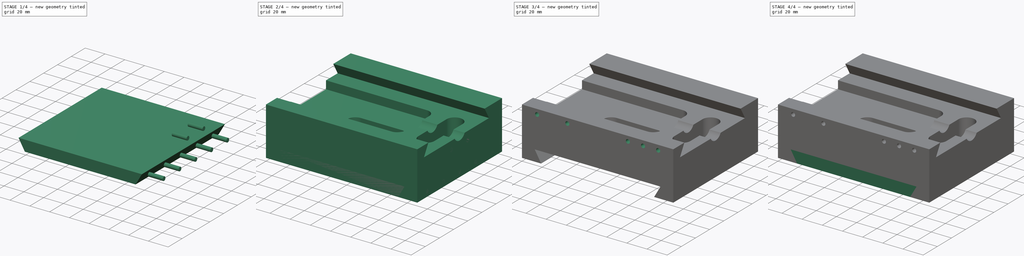
[diagram: build sequence overview — one tinted view per stage of 4, left to right]
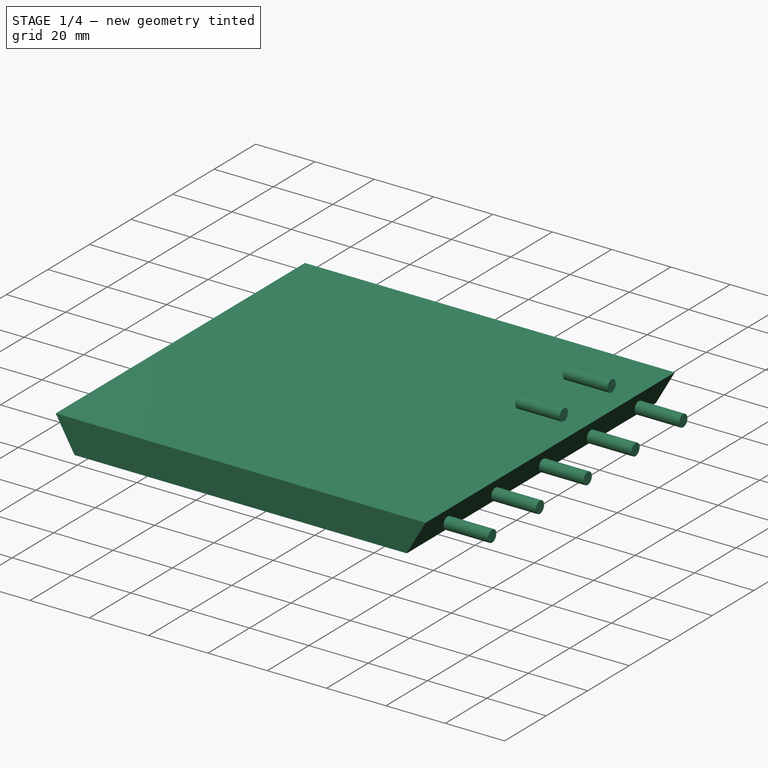
[diagram: stage 1 of 4 — iso view after this stage's code; geometry added in this stage tinted green]
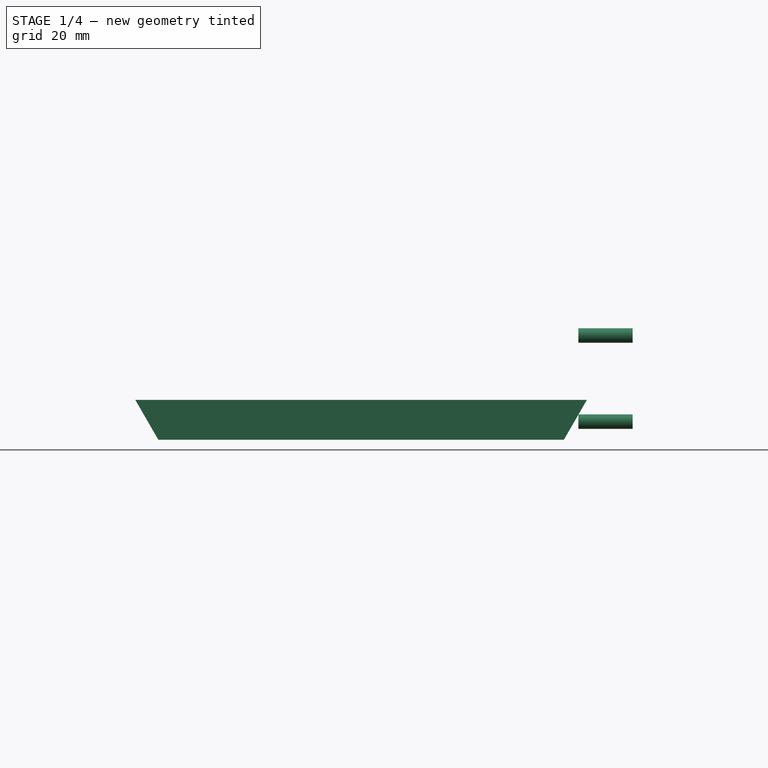
[diagram: stage 1 of 4 — front view after this stage's code; geometry added in this stage tinted green]
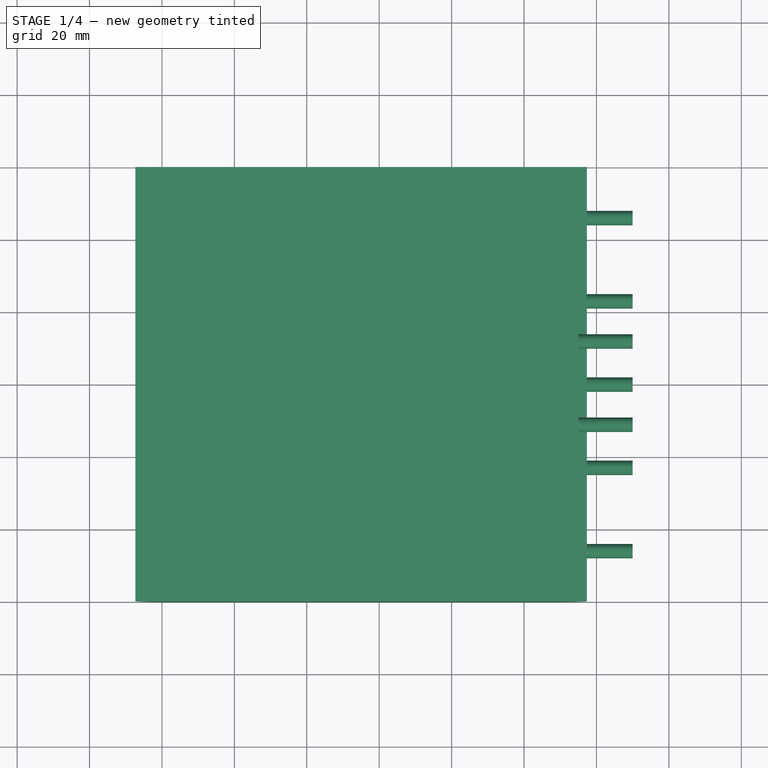
[diagram: stage 1 of 4 — top view after this stage's code; geometry added in this stage tinted green]
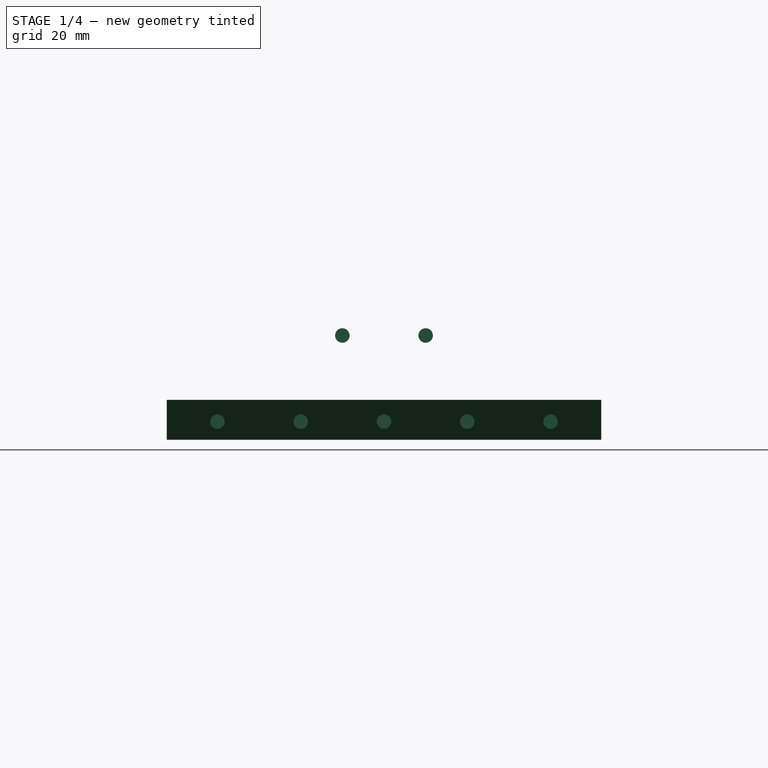
[diagram: stage 1 of 4 — right view after this stage's code; geometry added in this stage tinted green]
FCSTD DOCUMENT  (FreeCAD 0.16R5470 (Git))
Label: Saddle-149
License: CreativeCommons Attribution-ShareAlike
LicenseURL: http://creativecommons.org/licenses/by-sa/4.0/
objects: Sketcher::SketchObject×7, PartDesign::Pocket×4, Part::Extrusion×4, Part::Cut×2, PartDesign::Pad×1
note: 23 computed .brp shape members not serialized (recipe doc carries the construction recipe); baked Part::Feature solids carry a one-line shape summary decoded from their .brp

FEATURE [Sketcher::SketchObject] Sketch  label="Sketch-001"
  Placement = pos=(0,0,0) rot=(0.57735,0.57735,0.57735;2.0944rad)
  sketch-geometry (10):
    g0: LineSegment StartX=-60 StartY=0 StartZ=0 EndX=-60 EndY=47.8 EndZ=0
    g1: LineSegment StartX=-60 StartY=47.8 StartZ=0 EndX=-44.3 EndY=47.8 EndZ=0
    g2: LineSegment StartX=-44.3 StartY=47.8 StartZ=0 EndX=-50.5354 EndY=37 EndZ=0
    g3: LineSegment StartX=-50.5354 StartY=37 StartZ=0 EndX=-7.03989 EndY=37 EndZ=0
    g4: LineSegment StartX=7.03989 StartY=37 StartZ=0 EndX=41.5354 EndY=37 EndZ=0
    g5: LineSegment StartX=41.5354 StartY=37 StartZ=0 EndX=35.3 EndY=47.8 EndZ=0
    g6: LineSegment StartX=35.3 StartY=47.8 StartZ=0 EndX=60 EndY=47.8 EndZ=0
    g7: LineSegment StartX=60 StartY=47.8 StartZ=0 EndX=60 EndY=0 EndZ=0
    g8: LineSegment StartX=60 StartY=0 StartZ=0 EndX=-60 EndY=0 EndZ=0
    g9: ArcOfCircle CenterX=0 CenterY=40.8 CenterZ=0 NormalX=0 NormalY=0 NormalZ=1 Radius=8 StartAngle=3.63656 EndAngle=5.78822
  constraints (31):
    c: Coincident(g0,g1)
    c: Coincident(g1,g2)
    c: Coincident(g2,g3)
    c: Coincident(g4,g5)
    c: Coincident(g5,g6)
    c: Coincident(g6,g7)
    c: Coincident(g7,g8)
    c: Coincident(g9,g4)
    c: Coincident(g9,g3)
    c: Horizontal(g4)
    c: Horizontal(g3)
    c: Vertical(g0)
    c: Equal(g7,g0)
    c: Vertical(g7)
    c: Coincident(g0,g8)
    c: Angle(g3,g2) = 1.0472
    c: Angle(g5,g4) = 1.0472
    c: DistanceX(g0,g7) = 120
    c: Horizontal(g8)
    c: Symmetric(g0,g7,g-2)
    c: DistanceY(g-1,g7) = 0
    c: Horizontal(g1)
    c: Horizontal(g6)
    c: DistanceY(g0,g0) = -47.8
    c: DistanceY(g2,g0) = 10.8
    c: DistanceY(g6,g4) = -10.8
    c: DistanceX(g-1,g9) = 0
    c: Radius(g9) = 8
    c: DistanceY(g9,g1) = 7
    c: DistanceX(g1,g5) = 79.6
    c: DistanceX(g1,g0) = -15.7
FEATURE [PartDesign::Pad] Pad  label="Y-Z Profile"
  Length = 150
  Length2 = 100
  Placement = pos=(0,0,0) rot=(0.57735,0.57735,0.57735;2.0944rad)
  Sketch = -> Sketch
  Type = 0
FEATURE [Part::Extrusion] Extrude_Sketch002  label="Sketch-006_Extrude"
  Base = -> Sketch002
  Dir = (0,120,0)
  Solid = true
FEATURE [Part::Extrusion] Extrude_Sketch001  label="Sketch-005_Extrude"
  Base = -> Sketch001
  Dir = (-15,0,0)
  Solid = true
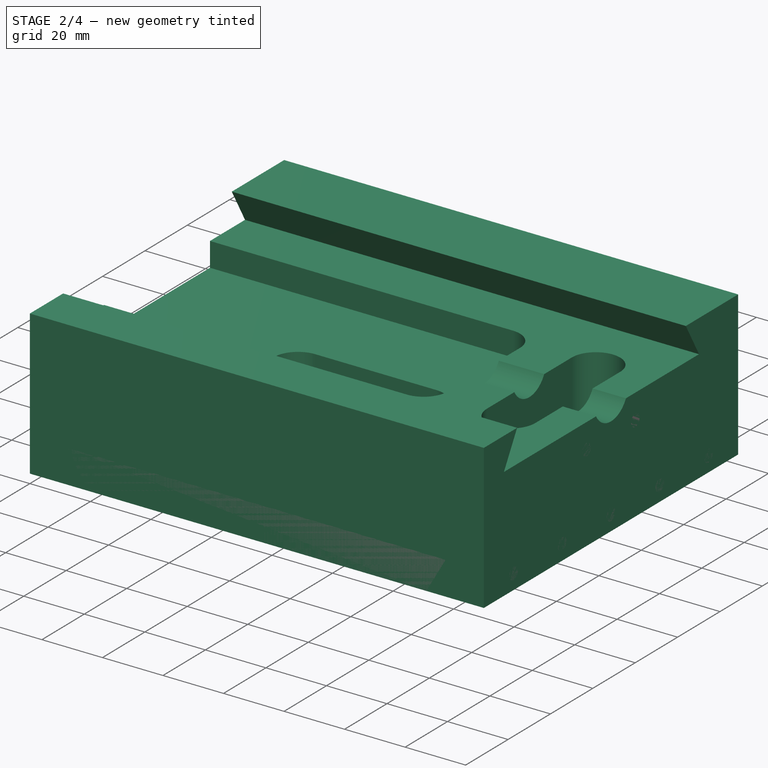
[diagram: stage 2 of 4 — iso view after this stage's code; geometry added in this stage tinted green]
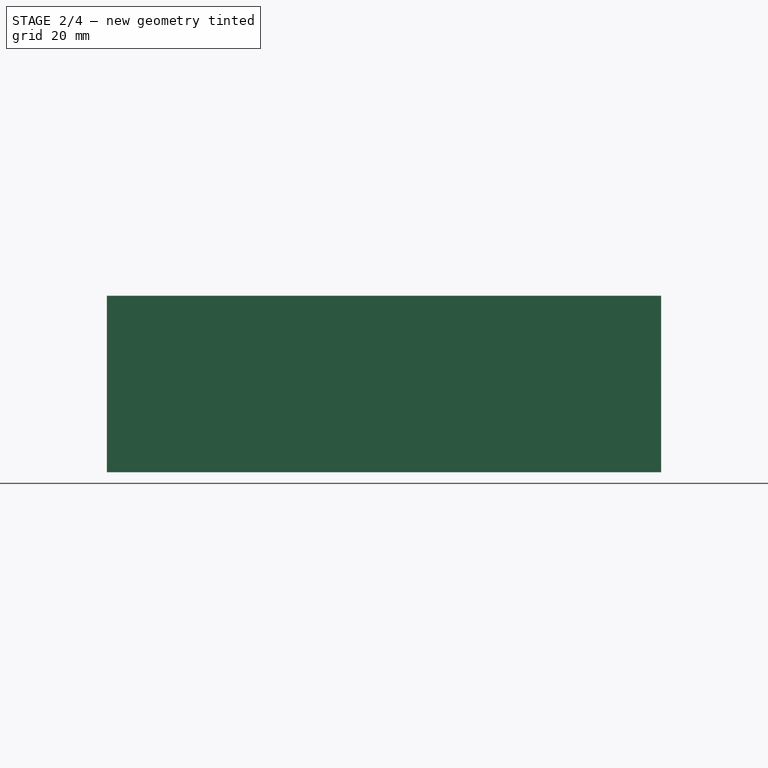
[diagram: stage 2 of 4 — front view after this stage's code; geometry added in this stage tinted green]
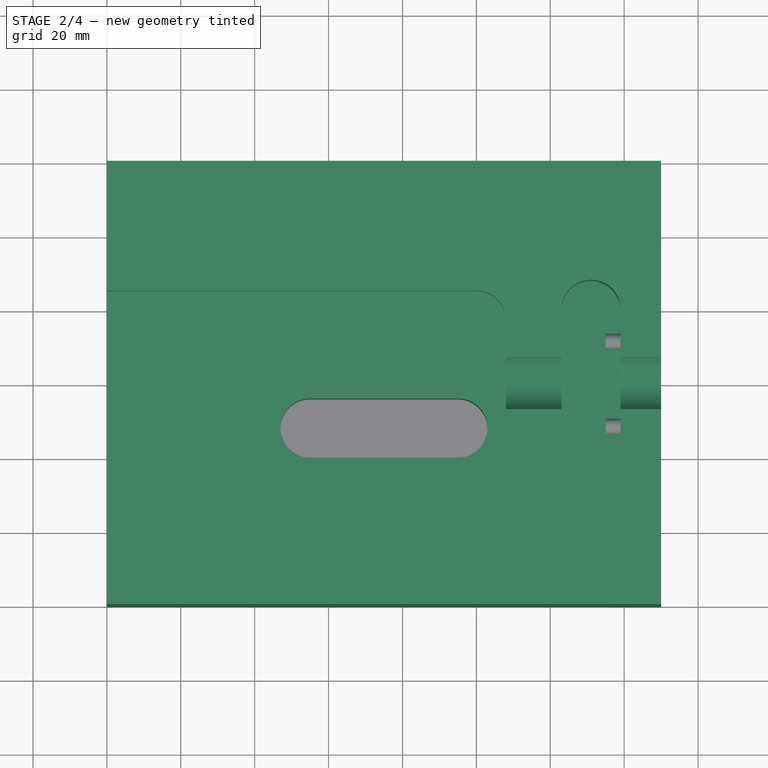
[diagram: stage 2 of 4 — top view after this stage's code; geometry added in this stage tinted green]
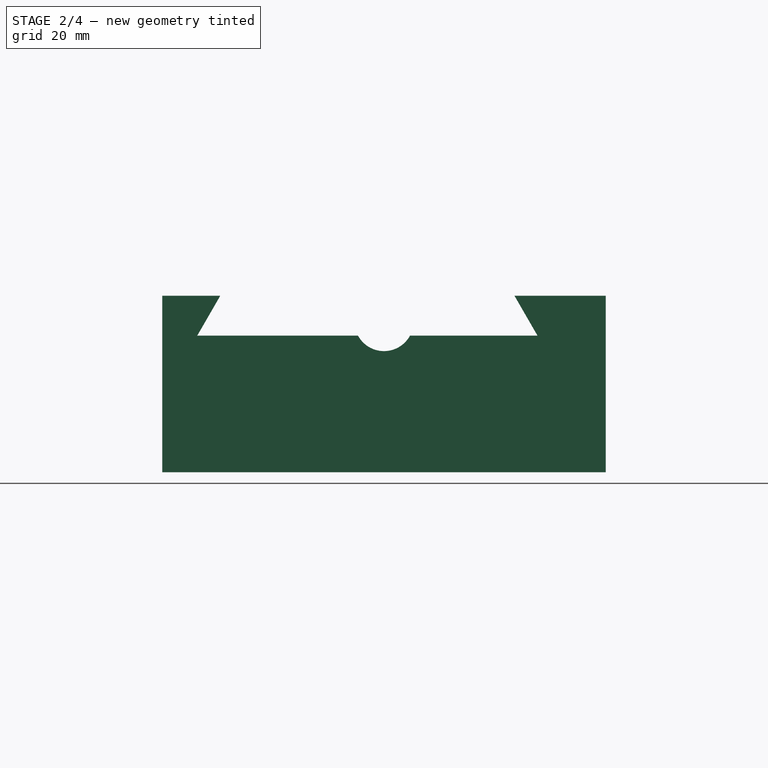
[diagram: stage 2 of 4 — right view after this stage's code; geometry added in this stage tinted green]
FEATURE [Sketcher::SketchObject] Sketch001  label="Sketch-005"
  Placement = pos=(150,0,0) rot=(0.57735,0.57735,0.57735;2.0944rad)
  Support = -> Pad [Face12]
  sketch-geometry (7):
    g0: Circle CenterX=0 CenterY=5 CenterZ=0 NormalX=0 NormalY=0 NormalZ=1 Radius=2
    g1: Circle CenterX=23 CenterY=5 CenterZ=0 NormalX=0 NormalY=0 NormalZ=1 Radius=2
    g2: Circle CenterX=46 CenterY=5 CenterZ=0 NormalX=0 NormalY=0 NormalZ=1 Radius=2
    g3: Circle CenterX=-23 CenterY=5 CenterZ=0 NormalX=0 NormalY=0 NormalZ=1 Radius=2
    g4: Circle CenterX=-46 CenterY=5 CenterZ=0 NormalX=0 NormalY=0 NormalZ=1 Radius=2
    g5: Circle CenterX=-11.5 CenterY=28.8 CenterZ=0 NormalX=0 NormalY=0 NormalZ=1 Radius=2
    g6: Circle CenterX=11.5 CenterY=28.8 CenterZ=0 NormalX=0 NormalY=0 NormalZ=1 Radius=2
  constraints (19):
    c: Symmetric(g5,g6,g-2)
    c: DistanceX(g3,g0) = 23
    c: DistanceX(g3,g4) = -23
    c: DistanceY(g-1,g4) = 5
    c: Equal(g4,g3)
    c: Equal(g3,g0)
    c: Equal(g0,g1)
    c: Equal(g1,g2)
    c: Radius(g2) = 2
    c: Symmetric(g3,g1,g-2)
    c: DistanceX(g0,g1) = 23
    c: DistanceX(g1,g2) = 23
    c: DistanceY(g-1,g3) = 5
    c: DistanceY(g-1,g0) = 5
    c: DistanceY(g-1,g2) = 5
    c: Equal(g6,g5)
    c: Radius(g6) = 2
    c: DistanceX(g5,g6) = 23
    c: DistanceY(g-1,g5) = 28.8
FEATURE [Sketcher::SketchObject] Sketch002  label="Sketch-006"
  Placement = pos=(0,-60,0) rot=(0.57735,0.57735,-0.57735;2.0944rad)
  Support = -> Pad [Face1]
  sketch-geometry (4):
    g0: LineSegment StartX=0 StartY=19 StartZ=0 EndX=-11 EndY=12.6491 EndZ=0
    g1: LineSegment StartX=-11 StartY=12.6491 StartZ=0 EndX=-11 EndY=137.351 EndZ=0
    g2: LineSegment StartX=-11 StartY=137.351 StartZ=0 EndX=0 EndY=131 EndZ=0
    g3: LineSegment StartX=0 StartY=131 StartZ=0 EndX=0 EndY=19 EndZ=0
  constraints (12):
    c: Coincident(g0,g1)
    c: Coincident(g1,g2)
    c: Coincident(g2,g3)
    c: Coincident(g0,g3)
    c: Vertical(g3)
    c: Vertical(g1)
    c: Angle(g0,g1) = 1.0472
    c: Angle(g1,g2) = 1.0472
    c: DistanceX(g-1,g0) = 0
    c: DistanceX(g0,g0) = 11
    c: DistanceY(g-1,g0) = 19
    c: DistanceY(g2,g0) = -112
FEATURE [Sketcher::SketchObject] Sketch004  label="Sketch-002"
  Placement = pos=(0,0,37) rot=(0,0,-1;1.5708rad)
  Support = -> Pad [Face4]
  sketch-geometry (4):
    g0: ArcOfCircle CenterX=-20 CenterY=131 CenterZ=0 NormalX=0 NormalY=0 NormalZ=1 Radius=8 StartAngle=1.5708 EndAngle=4.71239
    g1: ArcOfCircle CenterX=20 CenterY=131 CenterZ=0 NormalX=0 NormalY=0 NormalZ=1 Radius=8 StartAngle=4.71239 EndAngle=7.85398
    g2: LineSegment StartX=-20 StartY=123 StartZ=0 EndX=20 EndY=123 EndZ=0
    g3: LineSegment StartX=-20 StartY=139 StartZ=0 EndX=20 EndY=139 EndZ=0
  constraints (13):
    c: Coincident(g2,g0)
    c: Coincident(g3,g0)
    c: Coincident(g1,g3)
    c: Coincident(g1,g2)
    c: Equal(g2,g3)
    c: Radius(g0) = 8
    c: DistanceX(g0,g1) = 40
    c: DistanceY(g-1,g1) = 123
    c: Horizontal(g2)
    c: Horizontal(g3)
    c: DistanceY(g1,g1) = 16
    c: Radius(g1) = 8
    c: Symmetric(g0,g1,g-2)
FEATURE [PartDesign::Pocket] Pocket003  label="Slot (Nut-136)"
  Length = 20
  Placement = pos=(0,0,0) rot=(0.57735,0.57735,0.57735;2.0944rad)
  Sketch = -> Sketch004
  Type = 0
FEATURE [Sketcher::SketchObject] Sketch005  label="Sketch-003"
  Placement = pos=(0,0,37) rot=(0,0,-1;1.5708rad)
  Support = -> Pocket003 [Face8]
  sketch-geometry (6):
    g0: ArcOfCircle CenterX=-17 CenterY=100 CenterZ=0 NormalX=0 NormalY=0 NormalZ=1 Radius=8 StartAngle=1.57079 EndAngle=3.14159
    g1: ArcOfCircle CenterX=17 CenterY=100 CenterZ=0 NormalX=0 NormalY=0 NormalZ=1 Radius=8 StartAngle=0 EndAngle=1.57079
    g2: LineSegment StartX=-25 StartY=100 StartZ=0 EndX=-25 EndY=0 EndZ=0
    g3: LineSegment StartX=-25 StartY=0 StartZ=0 EndX=25 EndY=0 EndZ=0
    g4: LineSegment StartX=25 StartY=0 StartZ=0 EndX=25 EndY=100 EndZ=0
    g5: LineSegment StartX=-17 StartY=108 StartZ=0 EndX=17 EndY=108 EndZ=0
  constraints (19):
    c: DistanceX(g0,g1) = 50
    c: Radius(g1) = 8
    c: Radius(g0) = 8
    c: Coincident(g2,g3)
    c: Coincident(g3,g4)
    c: Coincident(g5,g0)
    c: Coincident(g5,g1)
    c: Horizontal(g5)
    c: Horizontal(g3)
    c: Vertical(g4)
    c: Vertical(g2)
    c: Coincident(g2,g0)
    c: Coincident(g4,g1)
    c: DistanceY(g3,g1) = 100
    c: DistanceY(g1,g1) = -8
    c: Symmetric(g1,g0,g-2)
    c: Symmetric(g3,g2,g-2)
    c: DistanceY(g-1,g3) = 0
    c: DistanceY(g0,g0) = -8
FEATURE [PartDesign::Pocket] Pocket004  label="Large Recess"
  Length = 8
  Placement = pos=(0,0,0) rot=(0.57735,0.57735,0.57735;2.0944rad)
  Sketch = -> Sketch005
  Type = 0
FEATURE [Sketcher::SketchObject] Sketch006  label="Sketch-004"
  Placement = pos=(0,0,29) rot=(0,0,-1;1.5708rad)
  Support = -> Pocket004 [Face10]
  sketch-geometry (4):
    g0: ArcOfCircle CenterX=12 CenterY=95 CenterZ=0 NormalX=0 NormalY=0 NormalZ=1 Radius=8 StartAngle=0 EndAngle=3.14159
    g1: ArcOfCircle CenterX=12 CenterY=55 CenterZ=0 NormalX=0 NormalY=0 NormalZ=1 Radius=8 StartAngle=3.14159 EndAngle=6.28319
    g2: LineSegment StartX=4 StartY=95 StartZ=0 EndX=4 EndY=55 EndZ=0
    g3: LineSegment StartX=20 StartY=95 StartZ=0 EndX=20 EndY=55 EndZ=0
  constraints (14):
    c: Coincident(g0,g3)
    c: Coincident(g1,g3)
    c: Coincident(g1,g2)
    c: Coincident(g2,g0)
    c: Radius(g0) = 8
    c: Radius(g1) = 8
    c: DistanceY(g1,g0) = 40
    c: DistanceY(g0,g0) = 0
    c: DistanceY(g-1,g1) = 55
    c: DistanceX(g-1,g1) = 4
    c: DistanceY(g-1,g1) = 55
    c: Equal(g3,g2)
    c: Vertical(g2)
    c: DistanceY(g-1,g1) = 55
FEATURE [PartDesign::Pocket] Pocket005  label="Slot (Nut-138)"
  Length = 30.8
  Placement = pos=(0,0,0) rot=(0.57735,0.57735,0.57735;2.0944rad)
  Sketch = -> Sketch006
  Type = 0
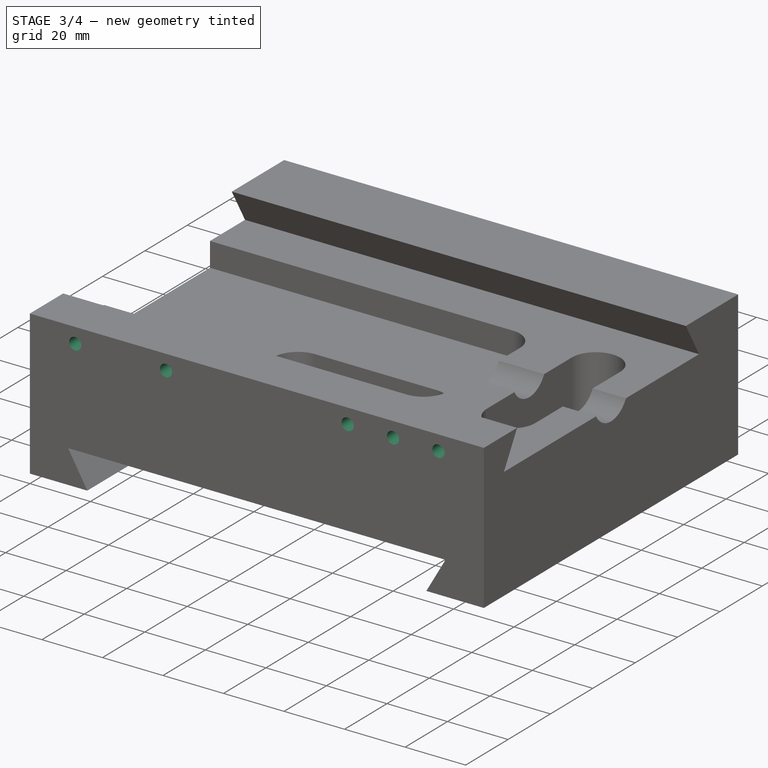
[diagram: stage 3 of 4 — iso view after this stage's code; geometry added in this stage tinted green]
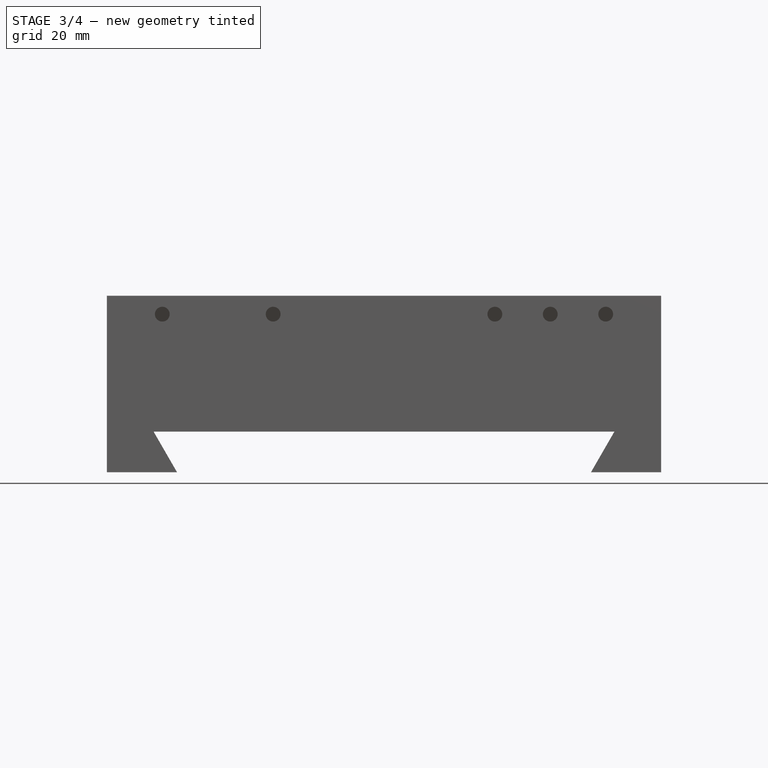
[diagram: stage 3 of 4 — front view after this stage's code; geometry added in this stage tinted green]
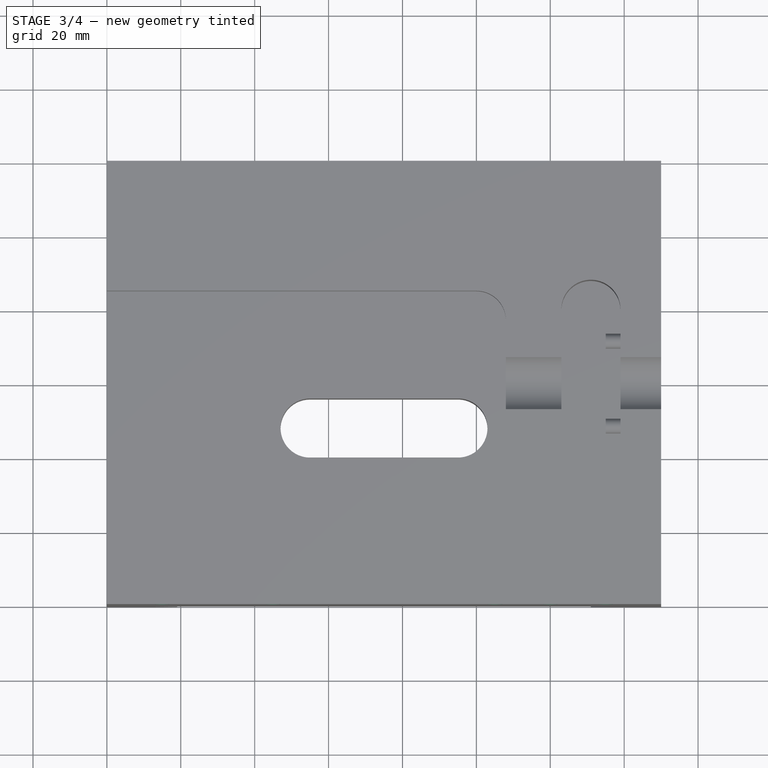
[diagram: stage 3 of 4 — top view after this stage's code; geometry added in this stage tinted green]
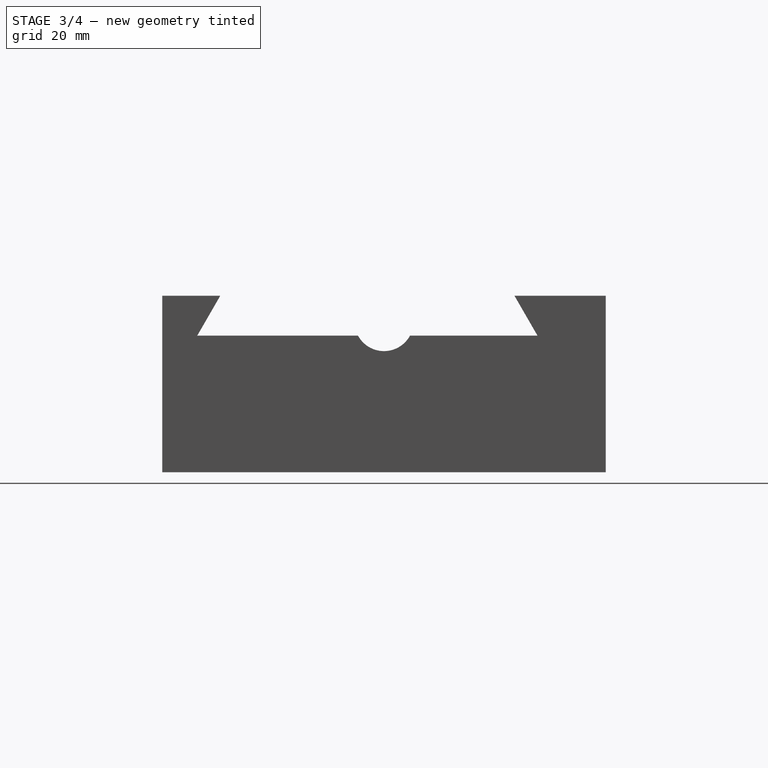
[diagram: stage 3 of 4 — right view after this stage's code; geometry added in this stage tinted green]
FEATURE [Sketcher::SketchObject] Sketch003  label="Sketch-007"
  Placement = pos=(0,-60,0) rot=(-0.57735,-0.57735,0.57735;4.18879rad)
  Support = -> Pocket005 [Face1]
  sketch-geometry (5):
    g0: Circle CenterX=-42.8 CenterY=15 CenterZ=0 NormalX=0 NormalY=0 NormalZ=1 Radius=2
    g1: Circle CenterX=-42.8 CenterY=45 CenterZ=0 NormalX=0 NormalY=0 NormalZ=1 Radius=2
    g2: Circle CenterX=-42.8 CenterY=105 CenterZ=0 NormalX=0 NormalY=0 NormalZ=1 Radius=2
    g3: Circle CenterX=-42.8 CenterY=120 CenterZ=0 NormalX=0 NormalY=0 NormalZ=1 Radius=2
    g4: Circle CenterX=-42.8 CenterY=135 CenterZ=0 NormalX=0 NormalY=0 NormalZ=1 Radius=2
  constraints (15):
    c: DistanceX(g-1,g0) = -42.8
    c: DistanceX(g-1,g1) = -42.8
    c: DistanceX(g-1,g2) = -42.8
    c: DistanceX(g-1,g3) = -42.8
    c: DistanceX(g-1,g4) = -42.8
    c: DistanceY(g0,g1) = 30
    c: DistanceY(g2,g4) = 30
    c: DistanceY(g1,g2) = 60
    c: DistanceY(g-1,g0) = 15
    c: Equal(g0,g1)
    c: Equal(g1,g2)
    c: Equal(g2,g4)
    c: Radius(g1) = 2
    c: Radius(g3) = 2
    c: DistanceY(g2,g3) = 15
FEATURE [PartDesign::Pocket] Pocket
  Length = 19
  Placement = pos=(0,0,0) rot=(0.57735,0.57735,0.57735;2.0944rad)
  Sketch = -> Sketch003
  Type = 0
FEATURE [Part::Cut] Cut
  Base = -> Pocket
  Tool = -> Extrude_Sketch002
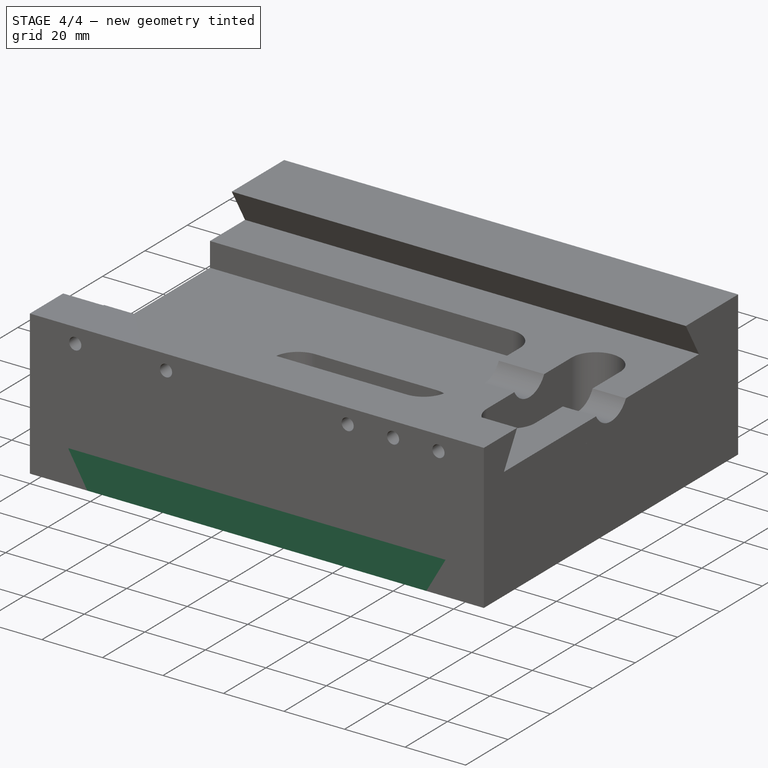
[diagram: stage 4 of 4 — iso view after this stage's code; geometry added in this stage tinted green]
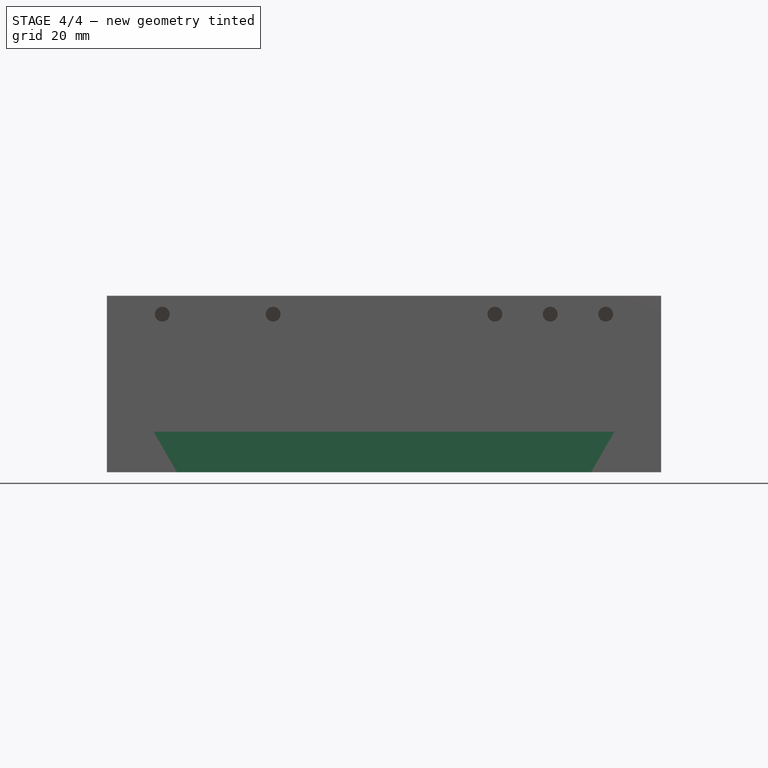
[diagram: stage 4 of 4 — front view after this stage's code; geometry added in this stage tinted green]
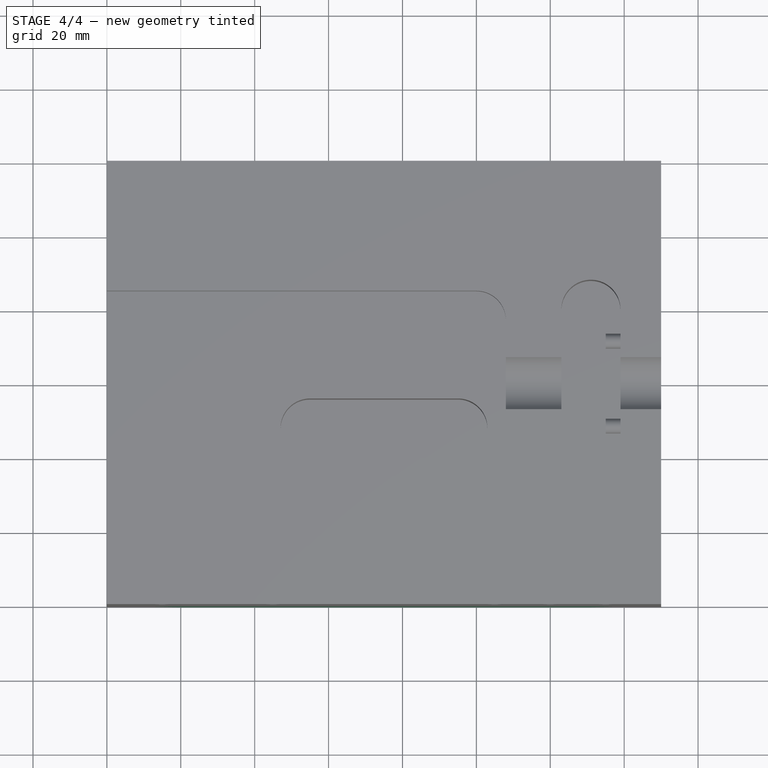
[diagram: stage 4 of 4 — top view after this stage's code; geometry added in this stage tinted green]
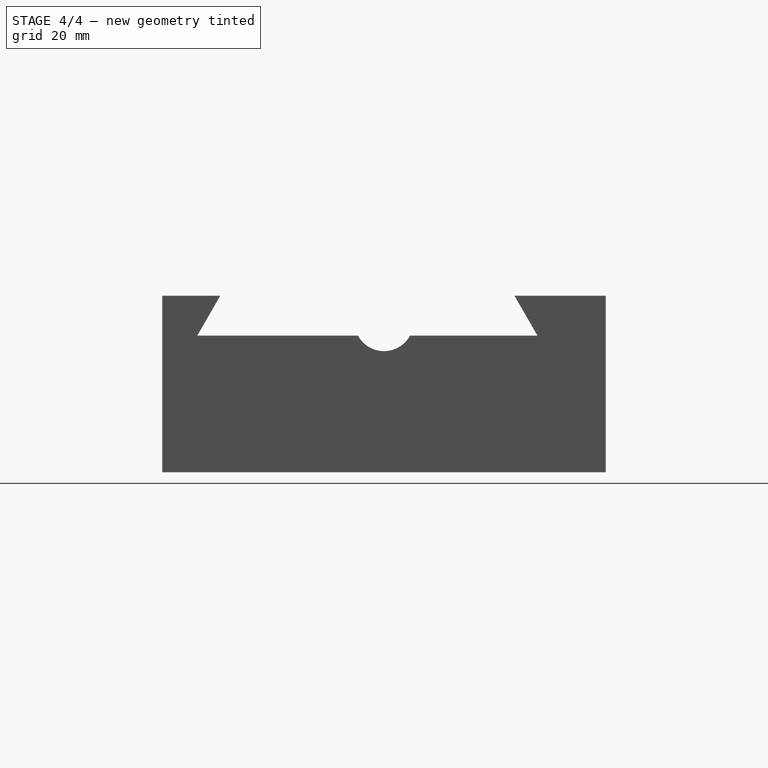
[diagram: stage 4 of 4 — right view after this stage's code; geometry added in this stage tinted green]
FEATURE [Part::Extrusion] Extrude_Sketch002001  label="Sketch-006_Extrude001"
  Base = -> Sketch002
  Dir = (0,120,0)
  Solid = true
FEATURE [Part::Extrusion] Extrude_Sketch001001  label="Sketch-005_Extrude001"
  Base = -> Sketch001
  Dir = (-15,0,0)
  Solid = true
FEATURE [Part::Cut] Cut001
  Base = -> Cut
  Tool = -> Extrude_Sketch001
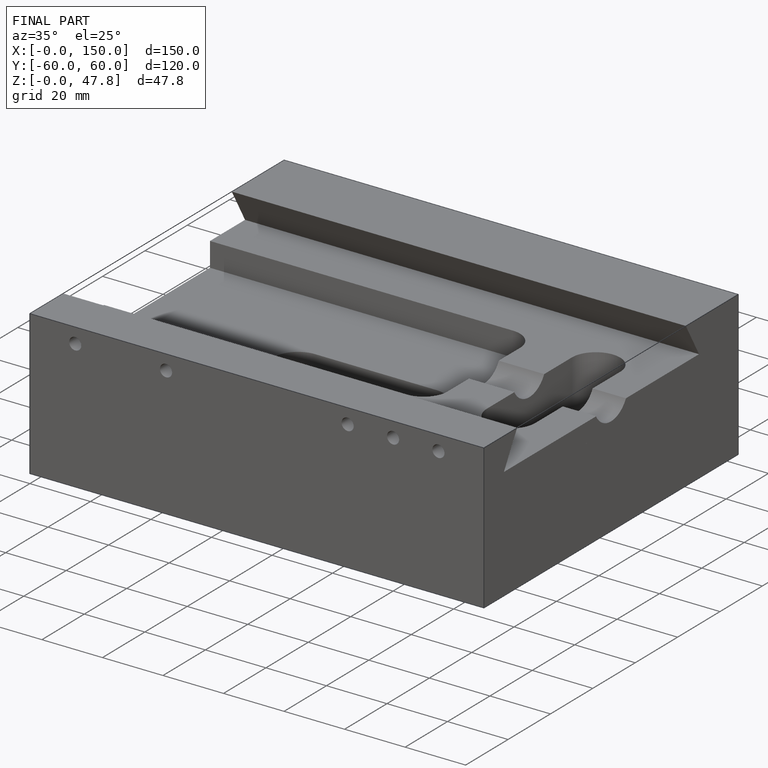
[diagram: finished part — iso view with bounding-box wireframe]
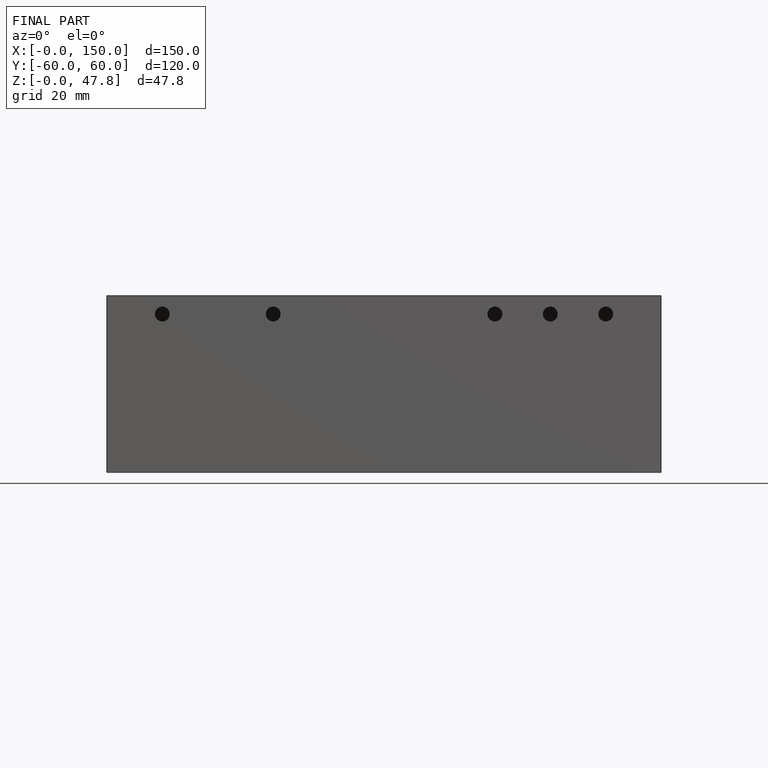
[diagram: finished part — front view with bounding-box wireframe]
